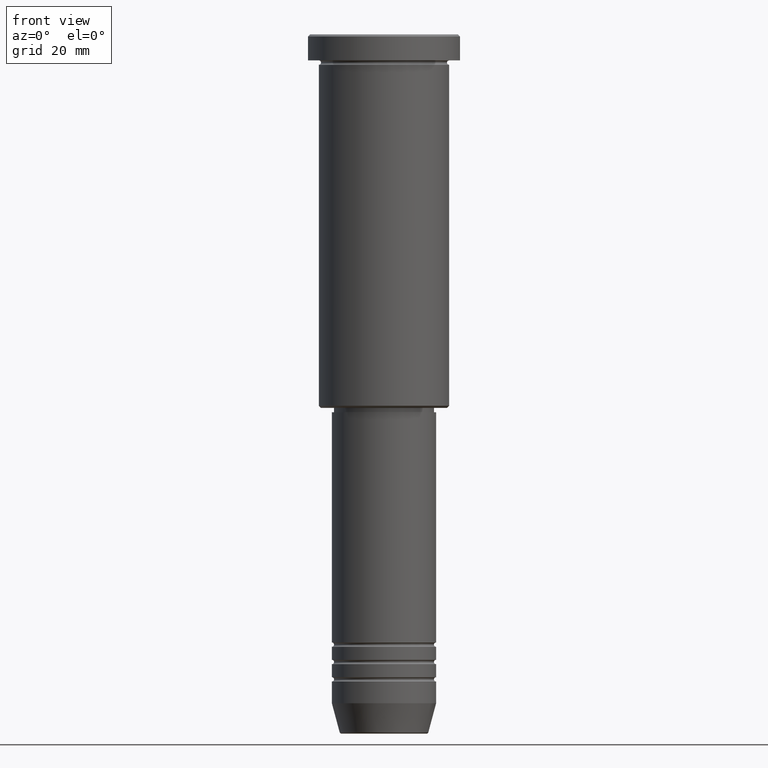
[diagram: clean part render]
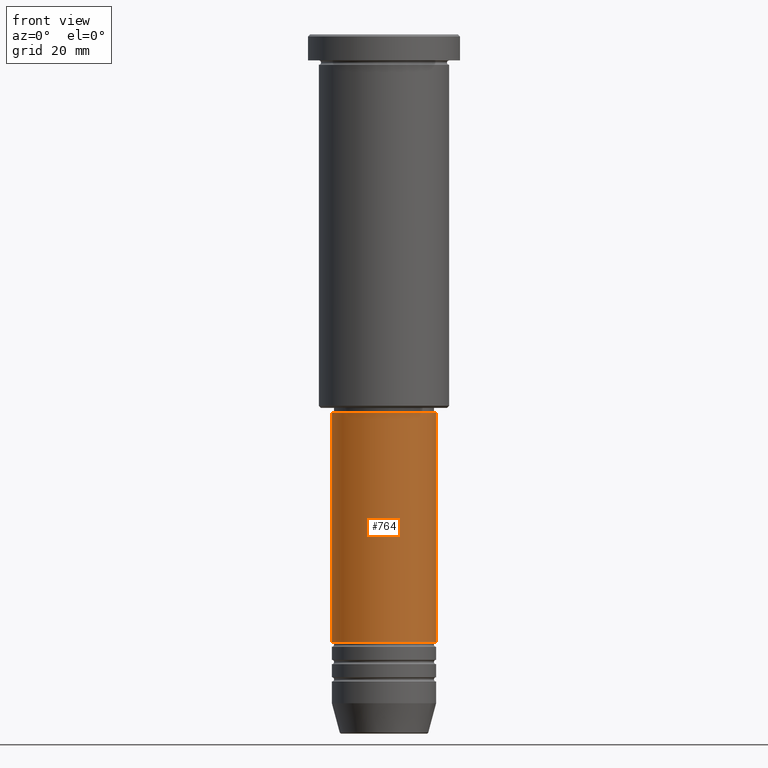
[diagram: same view with one face highlighted and labeled with its STEP entity id]
A machine part, front view. The second image highlights one B-rep face of the part: STEP entity #764.
In plain terms, the highlighted cylindrical surface (partial cylindrical patch) has radius 12 mm, axis along (-0, -0, 1).
Its self-contained STEP definition (entity closure, byte-faithful):
#4 = CARTESIAN_POINT ( 'NONE',  ( -12.00000000000000000, 1.469576158976823947E-15, 0.000000000000000000 ) ) ;
#10 = CARTESIAN_POINT ( 'NONE',  ( -12.00000000000000000, 1.469576158976823947E-15, -86.99999999999997158 ) ) ;
#25 = EDGE_CURVE ( 'NONE', #1108, #833, #974, .T. ) ;
#39 = CARTESIAN_POINT ( 'NONE',  ( 12.00000000000000000, 0.000000000000000000, 0.000000000000000000 ) ) ;
#51 = EDGE_CURVE ( 'NONE', #621, #524, #465, .T. ) ;
#73 = ORIENTED_EDGE ( 'NONE', *, *, #25, .F. ) ;
#84 = FACE_OUTER_BOUND ( 'NONE', #882, .T. ) ;
#96 = ORIENTED_EDGE ( 'NONE', *, *, #116, .F. ) ;
#101 = AXIS2_PLACEMENT_3D ( 'NONE', #453, #547, #804 ) ;
#116 = EDGE_CURVE ( 'NONE', #621, #1108, #497, .T. ) ;
#131 = DIRECTION ( 'NONE',  ( 1.000000000000000000, 0.000000000000000000, 0.000000000000000000 ) ) ;
#148 = DIRECTION ( 'NONE',  ( -0.000000000000000000, -0.000000000000000000, 1.000000000000000000 ) ) ;
#206 = VECTOR ( 'NONE', #148, 1000.000000000000000 ) ;
#227 = ORIENTED_EDGE ( 'NONE', *, *, #51, .T. ) ;
#269 = EDGE_CURVE ( 'NONE', #524, #833, #480, .T. ) ;
#319 = DIRECTION ( 'NONE',  ( -0.000000000000000000, -0.000000000000000000, 1.000000000000000000 ) ) ;
#453 = CARTESIAN_POINT ( 'NONE',  ( 0.000000000000000000, 0.000000000000000000, 0.000000000000000000 ) ) ;
#465 = CIRCLE ( 'NONE', #620, 12.00000000000000000 ) ;
#480 = LINE ( 'NONE', #39, #1080 ) ;
#497 = LINE ( 'NONE', #4, #206 ) ;
#524 = VERTEX_POINT ( 'NONE', #1099 ) ;
#541 = CARTESIAN_POINT ( 'NONE',  ( 12.00000000000000000, 0.000000000000000000, -86.99999999999997158 ) ) ;
#547 = DIRECTION ( 'NONE',  ( -0.000000000000000000, -0.000000000000000000, 1.000000000000000000 ) ) ;
#585 = DIRECTION ( 'NONE',  ( -0.000000000000000000, -0.000000000000000000, 1.000000000000000000 ) ) ;
#620 = AXIS2_PLACEMENT_3D ( 'NONE', #771, #319, #683 ) ;
#621 = VERTEX_POINT ( 'NONE', #891 ) ;
#683 = DIRECTION ( 'NONE',  ( 1.000000000000000000, 0.000000000000000000, 0.000000000000000000 ) ) ;
#755 = DIRECTION ( 'NONE',  ( -0.000000000000000000, -0.000000000000000000, 1.000000000000000000 ) ) ;
#764 = ADVANCED_FACE ( 'NONE', ( #84 ), #1093, .T. ) ;
#771 = CARTESIAN_POINT ( 'NONE',  ( 0.000000000000000000, 0.000000000000000000, -139.9999999999998579 ) ) ;
#804 = DIRECTION ( 'NONE',  ( 1.000000000000000000, 0.000000000000000000, 0.000000000000000000 ) ) ;
#833 = VERTEX_POINT ( 'NONE', #541 ) ;
#866 = AXIS2_PLACEMENT_3D ( 'NONE', #964, #585, #131 ) ;
#882 = EDGE_LOOP ( 'NONE', ( #96, #227, #1161, #73 ) ) ;
#891 = CARTESIAN_POINT ( 'NONE',  ( -12.00000000000000000, 1.469576158976823947E-15, -139.9999999999998579 ) ) ;
#964 = CARTESIAN_POINT ( 'NONE',  ( 0.000000000000000000, 0.000000000000000000, -86.99999999999997158 ) ) ;
#974 = CIRCLE ( 'NONE', #866, 12.00000000000000000 ) ;
#1080 = VECTOR ( 'NONE', #755, 1000.000000000000000 ) ;
#1093 = CYLINDRICAL_SURFACE ( 'NONE', #101, 12.00000000000000000 ) ;
#1099 = CARTESIAN_POINT ( 'NONE',  ( 12.00000000000000000, 0.000000000000000000, -139.9999999999998579 ) ) ;
#1108 = VERTEX_POINT ( 'NONE', #10 ) ;
#1161 = ORIENTED_EDGE ( 'NONE', *, *, #269, .T. ) ;